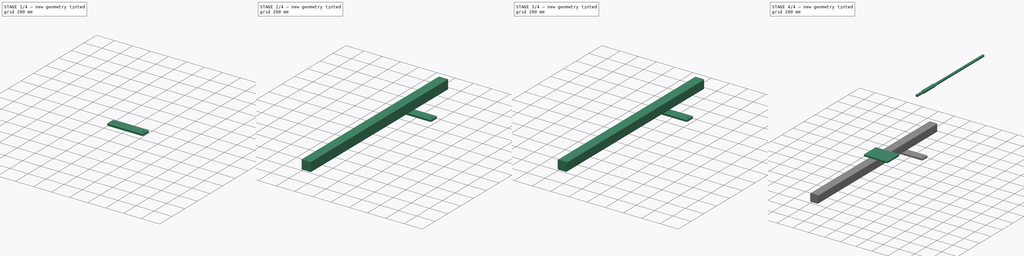
[diagram: build sequence overview — one tinted view per stage of 4, left to right]
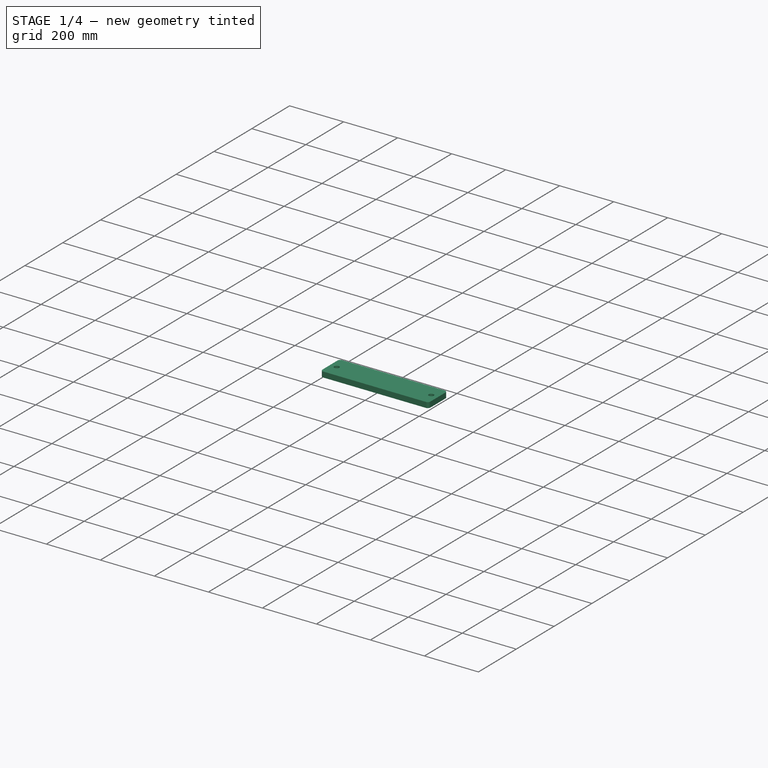
[diagram: stage 1 of 4 — iso view after this stage's code; geometry added in this stage tinted green]
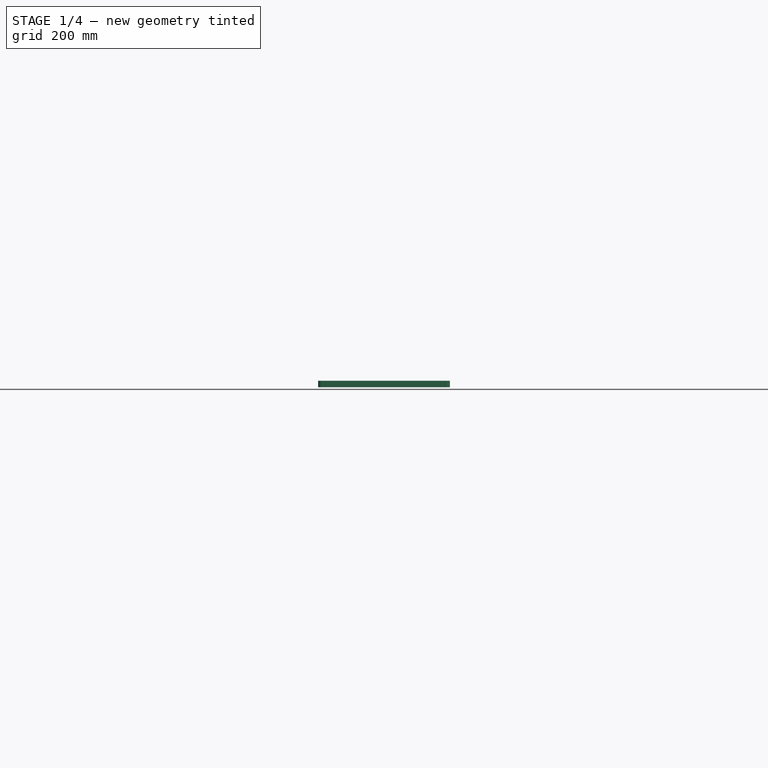
[diagram: stage 1 of 4 — front view after this stage's code; geometry added in this stage tinted green]
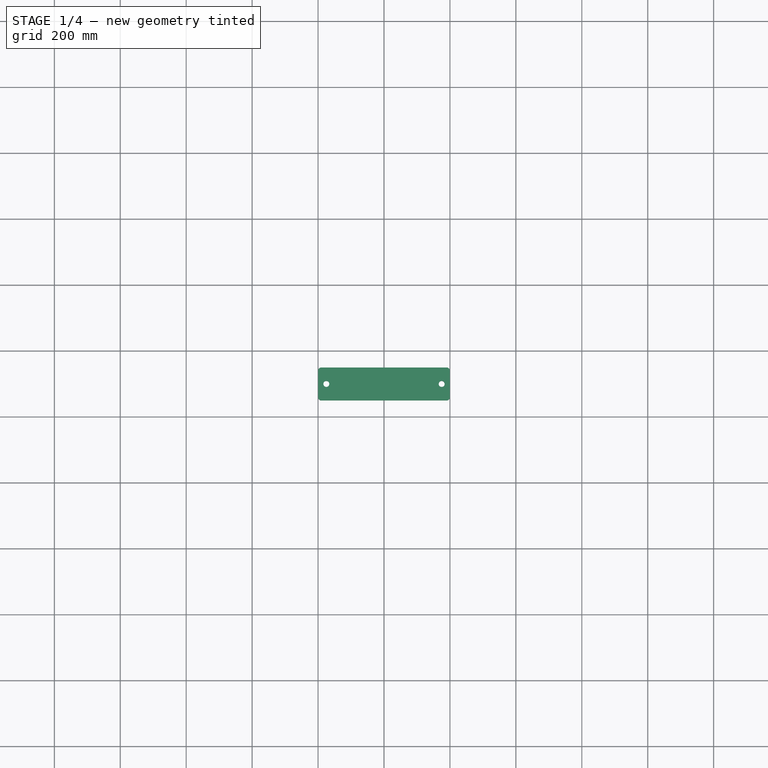
[diagram: stage 1 of 4 — top view after this stage's code; geometry added in this stage tinted green]
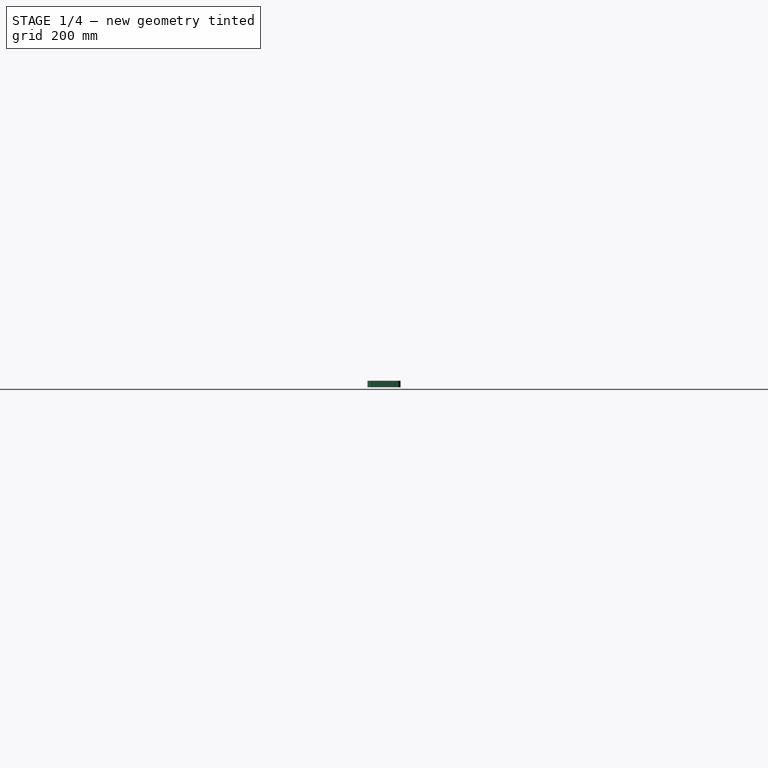
[diagram: stage 1 of 4 — right view after this stage's code; geometry added in this stage tinted green]
FCSTD DOCUMENT  (FreeCAD 0.18R16146 (Git))
Label: kuka
License: All rights reserved
LicenseURL: http://en.wikipedia.org/wiki/All_rights_reserved
objects: Part::Feature×23, PartDesign::Body×8, PartDesign::FeatureBase×5, PartDesign::Fillet×4, Sketcher::SketchObject×3, PartDesign::Pad×3, Part::Cylinder×2, App::Part×2
note: 51 computed .brp shape members not serialized (recipe doc carries the construction recipe); baked Part::Feature solids carry a one-line shape summary decoded from their .brp

FEATURE [PartDesign::Body] Body002  label="Tube_100x100_copy"
  Group = -> [Clone]
  Origin = -> Origin003
  Placement = pos=(200,0,0) rot=(0,0,1;0rad)
  Tip = -> Clone
FEATURE [Sketcher::SketchObject] Sketch002
  MapMode = 5
  Support = -> [XY_Plane004]
  sketch-geometry (6):
    g0: LineSegment StartX=-200 StartY=50 StartZ=0 EndX=200 EndY=50 EndZ=0
    g1: LineSegment StartX=200 StartY=50 StartZ=0 EndX=200 EndY=-50 EndZ=0
    g2: LineSegment StartX=200 StartY=-50 StartZ=0 EndX=-200 EndY=-50 EndZ=0
    g3: LineSegment StartX=-200 StartY=-50 StartZ=0 EndX=-200 EndY=50 EndZ=0
    g4: Circle CenterX=-175 CenterY=-2e-16 CenterZ=0 NormalX=0 NormalY=0 NormalZ=1 AngleXU=0 Radius=9
    g5: Circle CenterX=175 CenterY=-2e-16 CenterZ=0 NormalX=0 NormalY=0 NormalZ=1 AngleXU=0 Radius=9
  constraints (16):
    c: Coincident(g0,g1)
    c: Coincident(g1,g2)
    c: Coincident(g2,g3)
    c: Coincident(g3,g0)
    c: Horizontal(g0)
    c: Horizontal(g2)
    c: Vertical(g1)
    c: Vertical(g3)
    c: DistanceX(g0,g0) = 400
    c: DistanceY(g1,g1) = 100
    c: DistanceY(g-1,g0) = 50
    c: DistanceX(g0,g-1) = 200
    c: Radius(g4) = 9
    c: DistanceY(g4,g0) = 50
    c: DistanceX(g0,g4) = 25
    c: Radius(g5) = 9
FEATURE [PartDesign::Pad] Pad002
  Length = 20
  Length2 = 100
  Profile = -> Sketch002
  Type = 0
FEATURE [PartDesign::Fillet] Fillet002
  Base = -> Pad002 [Edge5,Edge2,Edge8,Edge1]
  BaseFeature = -> Pad002
  Radius = 10
FEATURE [PartDesign::Body] Body003  label="Floor_attachment"
  Group = -> [Sketch002,Pad002,Fillet002]
  Origin = -> Origin004
  Placement = pos=(0,0,-170) rot=(0,0,1;0rad)
  Tip = -> Fillet002
FEATURE [PartDesign::FeatureBase] Clone001
  BaseFeature = -> Body003
  Placement = pos=(0,0,-170) rot=(0,0,1;0rad)
FEATURE [PartDesign::Body] Body004  label="Floor_attachment_clone"
  Group = -> [Clone001]
  Origin = -> Origin005
  Placement = pos=(0,-500,0) rot=(0,0,1;0rad)
  Tip = -> Clone001
FEATURE [PartDesign::FeatureBase] Clone002
  BaseFeature = -> Body004
  Placement = pos=(0,-500,0) rot=(0,0,1;0rad)
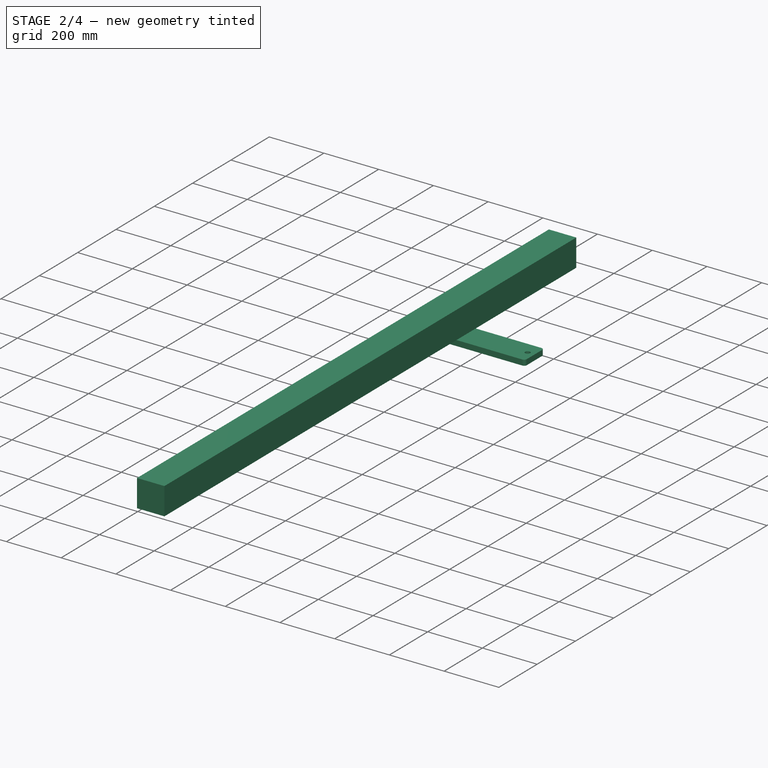
[diagram: stage 2 of 4 — iso view after this stage's code; geometry added in this stage tinted green]
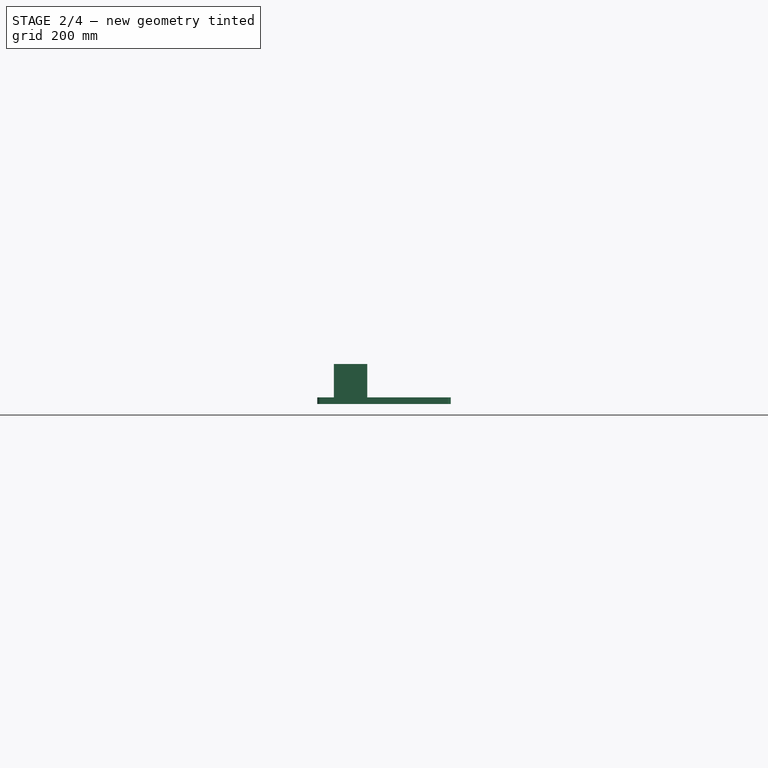
[diagram: stage 2 of 4 — front view after this stage's code; geometry added in this stage tinted green]
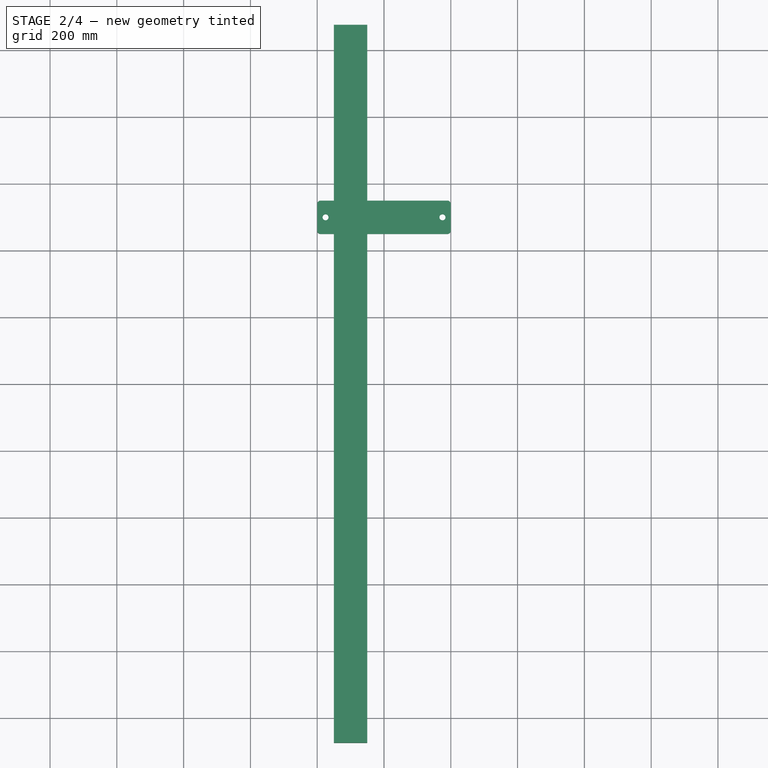
[diagram: stage 2 of 4 — top view after this stage's code; geometry added in this stage tinted green]
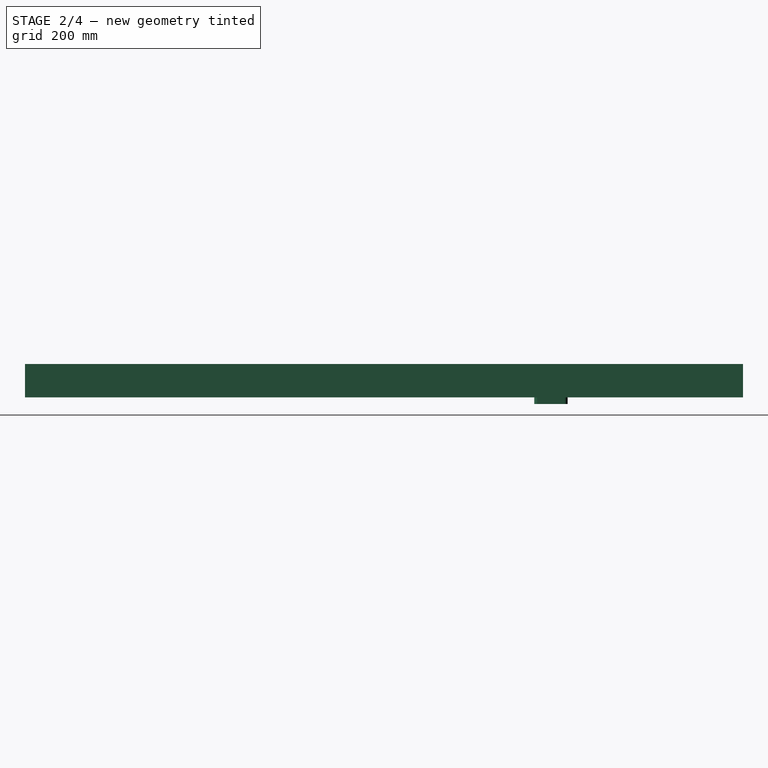
[diagram: stage 2 of 4 — right view after this stage's code; geometry added in this stage tinted green]
FEATURE [App::Part] KR6_KR10_R900_sixx  label="KR6_KR10_R900 sixx001"
  Group = -> [Part__Feature,Part__Feature001,Part__Feature002,Part__Feature003,Part__Feature004,Part__Feature005,Part__Feature006,Part__Feature007,Part__Feature008,Part__Feature009,Part__Feature010,Part__Feature011,Part__Feature012,Part__Feature013,Part__Feature014,Part__Feature015,Part__Feature016,Part__Feature017,Part__Feature018,Part__Feature019,Part__Feature020,Part__Feature021,Part__Feature022,Cylinder,+1 more]
  Origin = -> Origin
FEATURE [Sketcher::SketchObject] Sketch001
  MapMode = 5
  Placement = pos=(0,0,0) rot=(1,0,0;1.5708rad)
  Support = -> [XZ_Plane002]
  sketch-geometry (4):
    g0: LineSegment StartX=-150 StartY=-50 StartZ=0 EndX=-50 EndY=-50 EndZ=0
    g1: LineSegment StartX=-50 StartY=-50 StartZ=0 EndX=-50 EndY=-150 EndZ=0
    g2: LineSegment StartX=-50 StartY=-150 StartZ=0 EndX=-150 EndY=-150 EndZ=0
    g3: LineSegment StartX=-150 StartY=-150 StartZ=0 EndX=-150 EndY=-50 EndZ=0
  constraints (12):
    c: Coincident(g0,g1)
    c: Coincident(g1,g2)
    c: Coincident(g2,g3)
    c: Coincident(g3,g0)
    c: Horizontal(g0)
    c: Horizontal(g2)
    c: Vertical(g1)
    c: Vertical(g3)
    c: DistanceX(g0,g0) = 100
    c: DistanceY(g1,g1) = 100
    c: DistanceY(g0,g-1) = 50
    c: DistanceX(g0,g-1) = 50
FEATURE [PartDesign::Pad] Pad001
  Length = 2150
  Length2 = 100
  Midplane = true
  Placement = pos=(0,0,0) rot=(1,0,0;1.5708rad)
  Profile = -> Sketch001
  Type = 0
FEATURE [PartDesign::Body] Body005  label="Floor_attachement_clone001"
  Group = -> [Clone002]
  Origin = -> Origin006
  Placement = pos=(0,-500,0) rot=(0,0,1;0rad)
  Tip = -> Clone002
FEATURE [PartDesign::FeatureBase] Clone003
  BaseFeature = -> Body005
  Placement = pos=(0,-500,0) rot=(0,0,1;0rad)
FEATURE [PartDesign::Body] Body006  label="Floor_attachment_clone002"
  Group = -> [Clone003]
  Origin = -> Origin007
  Placement = pos=(0,1500,0) rot=(0,0,1;0rad)
  Tip = -> Clone003
FEATURE [PartDesign::FeatureBase] Clone004
  BaseFeature = -> Body006
  Placement = pos=(0,1500,0) rot=(0,0,1;0rad)
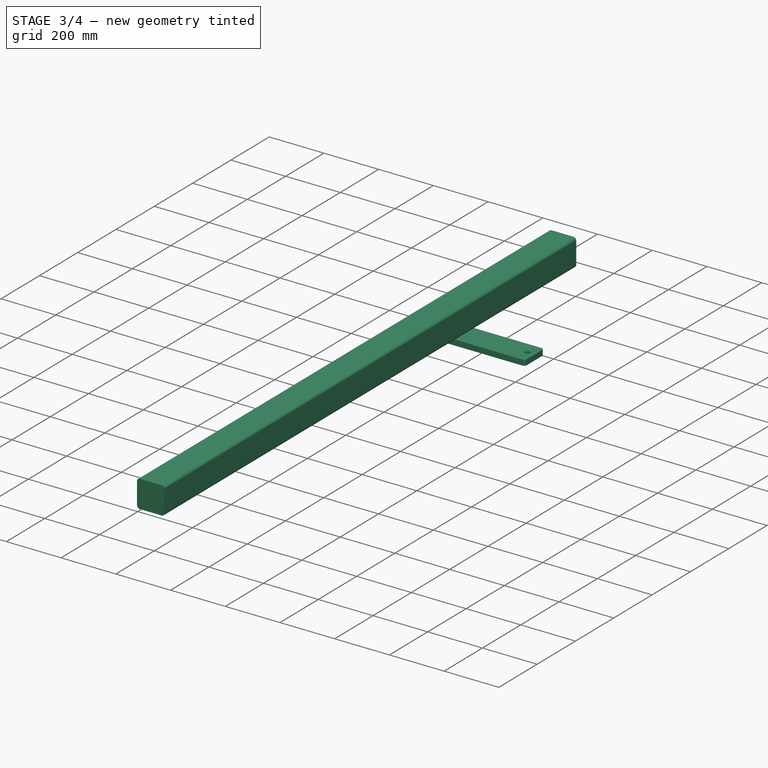
[diagram: stage 3 of 4 — iso view after this stage's code; geometry added in this stage tinted green]
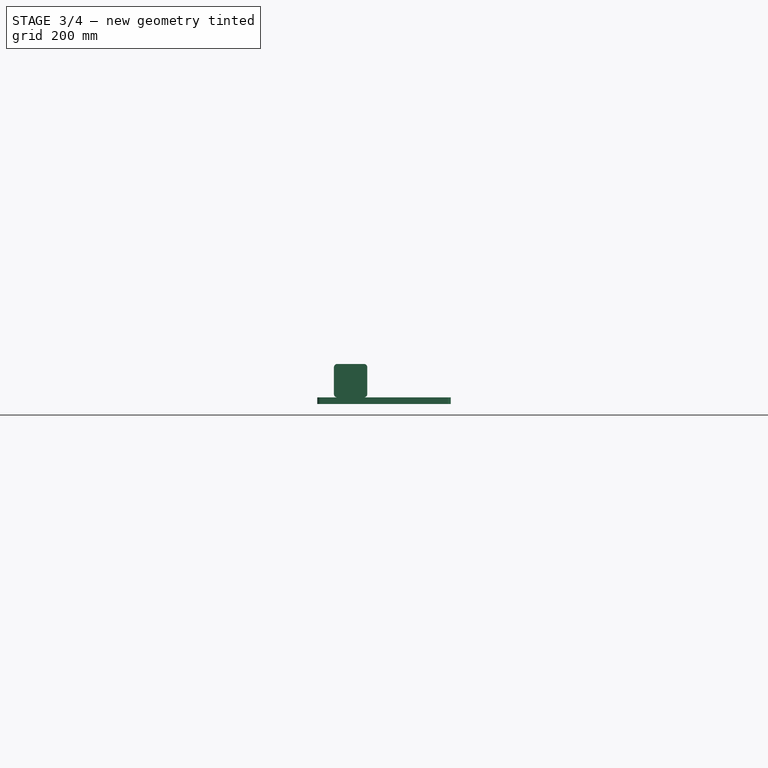
[diagram: stage 3 of 4 — front view after this stage's code; geometry added in this stage tinted green]
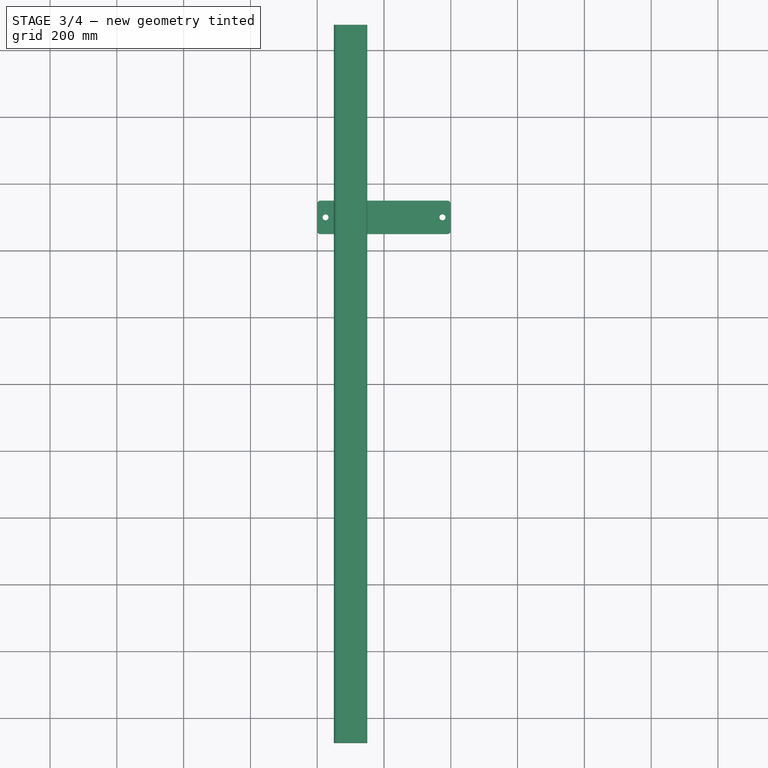
[diagram: stage 3 of 4 — top view after this stage's code; geometry added in this stage tinted green]
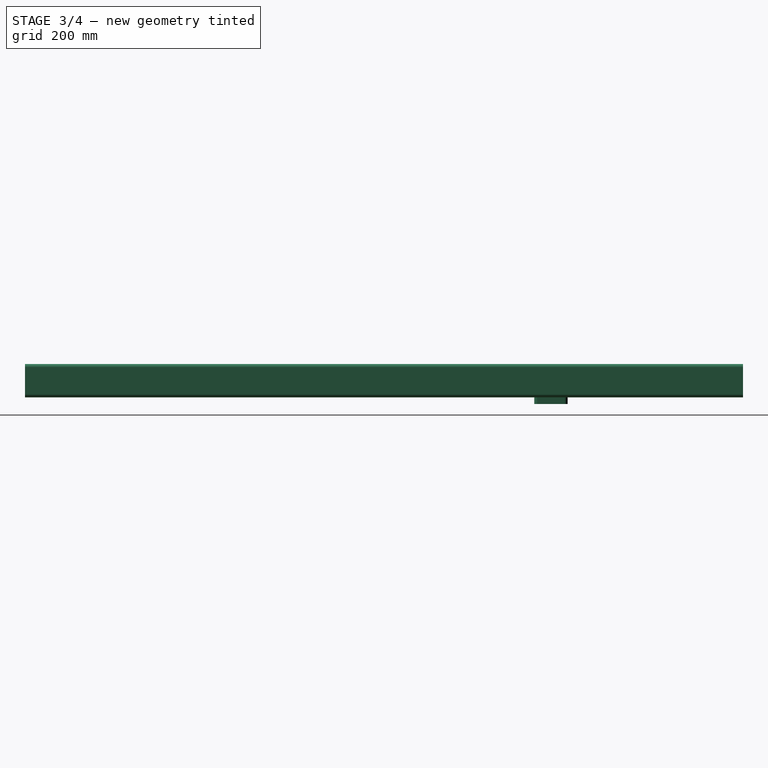
[diagram: stage 3 of 4 — right view after this stage's code; geometry added in this stage tinted green]
FEATURE [PartDesign::Fillet] Fillet
  Base = -> Pad001 [Edge2]
  BaseFeature = -> Pad001
  Placement = pos=(0,0,0) rot=(1,0,0;1.5708rad)
  Radius = 10
FEATURE [PartDesign::Fillet] Fillet001
  Base = -> Fillet [Edge11,Edge15,Edge3]
  BaseFeature = -> Fillet
  Placement = pos=(0,0,0) rot=(1,0,0;1.5708rad)
  Radius = 10
FEATURE [PartDesign::Body] Body001  label="Tube_100x100"
  Group = -> [Sketch001,Pad001,Fillet,Fillet001]
  Origin = -> Origin002
  Tip = -> Fillet001
FEATURE [PartDesign::FeatureBase] Clone
  BaseFeature = -> Body001
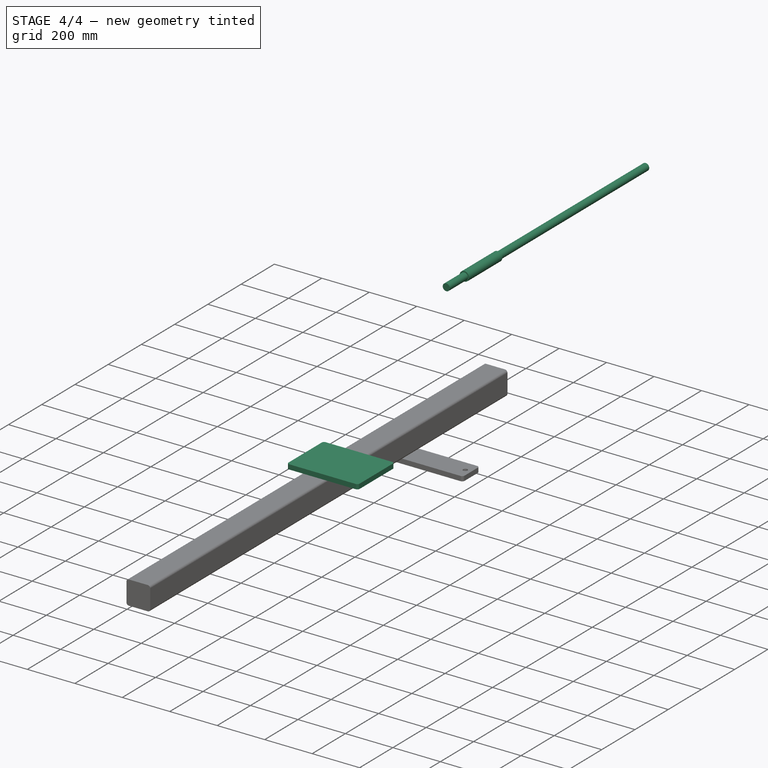
[diagram: stage 4 of 4 — iso view after this stage's code; geometry added in this stage tinted green]
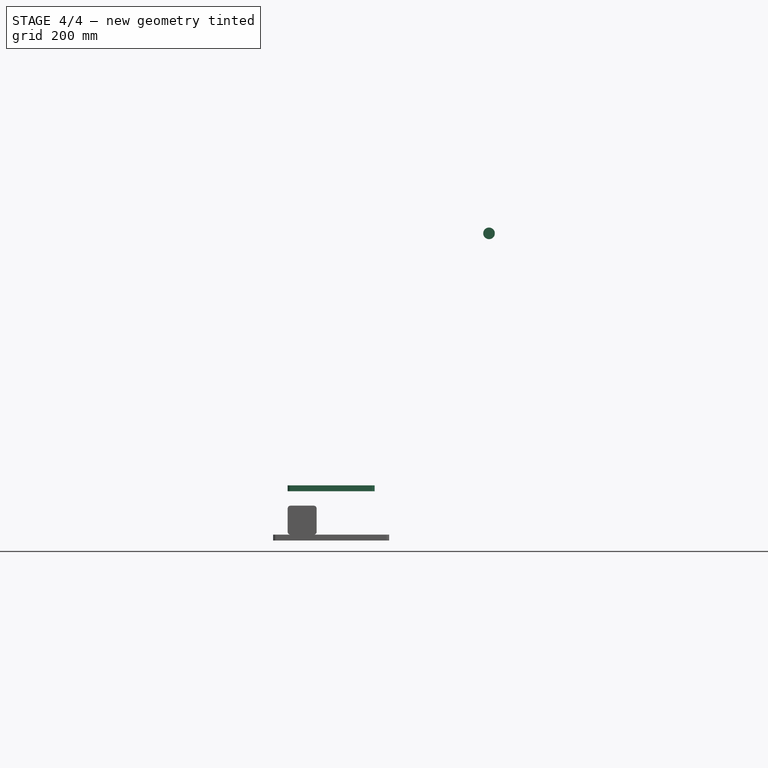
[diagram: stage 4 of 4 — front view after this stage's code; geometry added in this stage tinted green]
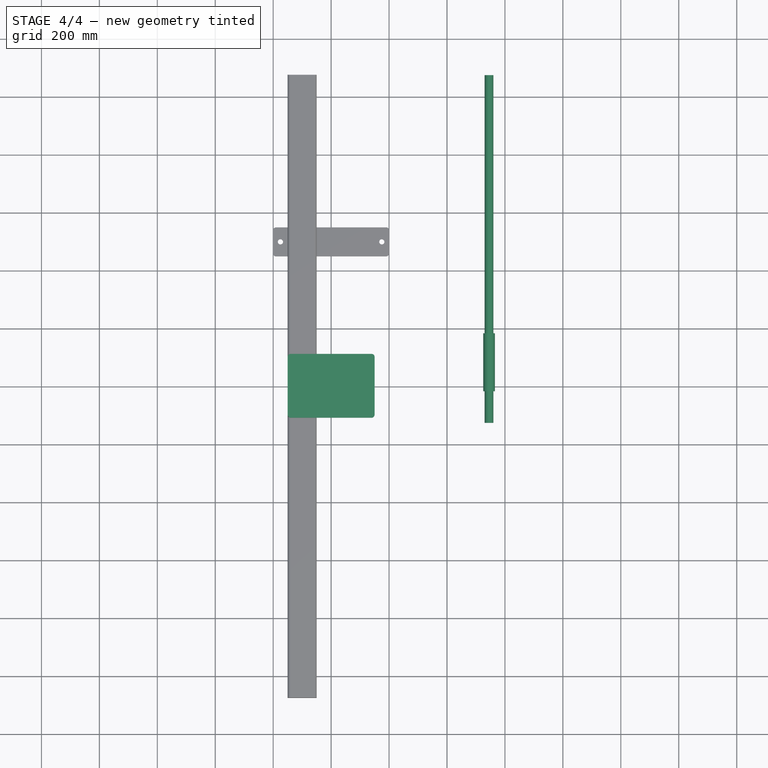
[diagram: stage 4 of 4 — top view after this stage's code; geometry added in this stage tinted green]
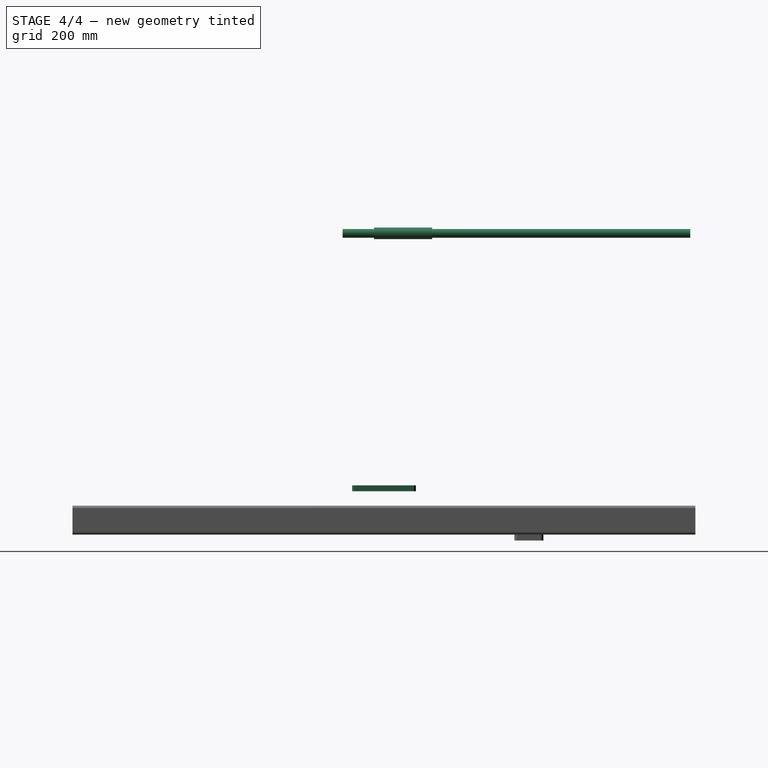
[diagram: stage 4 of 4 — right view after this stage's code; geometry added in this stage tinted green]
FEATURE [Part::Feature] Part__Feature  label="KR6_KR10_R900 sixx"
  shape: bbox 425.8 x 121.7 x 143.7 mm, 281 faces (baked)
FEATURE [Part::Feature] Part__Feature001  label="KR6_KR10_R900 sixx_1"
  shape: bbox 341.8 x 247.8 x 261.3 mm, 321 faces (baked)
FEATURE [Part::Feature] Part__Feature002  label="KR6_KR10_R900 sixx_2"
  shape: bbox 284.6 x 281.2 x 866.6 mm, 171 faces (baked)
FEATURE [Part::Feature] Part__Feature003  label="KR6_KR10_R900 sixx_3"
  shape: bbox 116.7 x 78.5 x 80.41 mm, 72 faces (baked)
FEATURE [Part::Feature] Part__Feature004  label="KR6_KR10_R900 sixx_4"
  shape: bbox 249.7 x 371.9 x 308 mm, 149 faces (baked)
FEATURE [Part::Feature] Part__Feature005  label="KR6_KR10_R900 sixx_5"
  shape: bbox 6.14 x 18.15 x 24.46 mm, 15 faces (baked)
FEATURE [Part::Feature] Part__Feature006  label="KR6_KR10_R900 sixx_6"
  shape: bbox 6.074 x 18.49 x 23.7 mm, 14 faces (baked)
FEATURE [Part::Feature] Part__Feature007  label="KR6_KR10_R900 sixx_7"
  shape: bbox 6.143 x 18.16 x 24.5 mm, 16 faces (baked)
FEATURE [Part::Feature] Part__Feature008  label="KR6_KR10_R900 sixx_8"
  shape: bbox 6.242 x 18.16 x 27.53 mm, 15 faces (baked)
FEATURE [Part::Feature] Part__Feature009  label="KR6_KR10_R900 sixx_9"
  shape: bbox 15.59 x 18.15 x 23.35 mm, 15 faces (baked)
FEATURE [Part::Feature] Part__Feature010  label="KR6_KR10_R900 sixx_10"
  shape: bbox 15.35 x 18.49 x 22.63 mm, 14 faces (baked)
FEATURE [Part::Feature] Part__Feature011  label="KR6_KR10_R900 sixx_11"
  shape: bbox 14.53 x 18.19 x 23.62 mm, 15 faces (baked)
FEATURE [Part::Feature] Part__Feature012  label="KR6_KR10_R900 sixx_12"
  shape: bbox 11.97 x 18.18 x 26.35 mm, 14 faces (baked)
FEATURE [Part::Feature] Part__Feature013  label="KR6_KR10_R900 sixx_13"
  shape: bbox 27.56 x 5 x 18.15 mm, 14 faces (baked)
FEATURE [Part::Feature] Part__Feature014  label="KR6_KR10_R900 sixx_14"
  shape: bbox 24.55 x 5 x 18.15 mm, 15 faces (baked)
FEATURE [Part::Feature] Part__Feature015  label="KR6_KR10_R900 sixx_15"
  shape: bbox 23.79 x 6 x 18.49 mm, 14 faces (baked)
FEATURE [Part::Feature] Part__Feature016  label="KR6_KR10_R900 sixx_16"
  shape: bbox 24.55 x 5 x 18.15 mm, 15 faces (baked)
FEATURE [Part::Feature] Part__Feature017  label="KR6_KR10_R900 sixx_17"
  shape: bbox 27.56 x 2.5 x 18.15 mm, 14 faces (baked)
FEATURE [Part::Feature] Part__Feature018  label="KR6_KR10_R900 sixx_18"
  shape: bbox 24.55 x 2.5 x 18.15 mm, 15 faces (baked)
FEATURE [Part::Feature] Part__Feature019  label="KR6_KR10_R900 sixx_19"
  shape: bbox 23.79 x 3 x 18.49 mm, 14 faces (baked)
FEATURE [Part::Feature] Part__Feature020  label="KR6_KR10_R900 sixx_20"
  shape: bbox 24.55 x 2.5 x 18.15 mm, 15 faces (baked)
FEATURE [Part::Feature] Part__Feature021  label="KR6_KR10_R900 sixx_21"
  shape: bbox 198.9 x 144.7 x 177.4 mm, 113 faces (baked)
FEATURE [Part::Feature] Part__Feature022  label="KR6_KR10_R900 sixx_22"
  shape: bbox 13.51 x 40.01 x 40.01 mm, 26 faces (baked)
FEATURE [Part::Cylinder] Cylinder
  Angle = 360
  AttacherType = Attacher::AttachEngine3D
  Height = 1200
  Placement = pos=(545,-143,890) rot=(-1,0,0;1.5708rad)
  Radius = 15
FEATURE [Part::Cylinder] Cylinder001
  Angle = 360
  AttacherType = Attacher::AttachEngine3D
  Height = 200
  Placement = pos=(545,-34,890) rot=(-1,0,0;1.5708rad)
  Radius = 20
FEATURE [PartDesign::Body] Body007  label="Floor_attachment_clone003"
  Group = -> [Clone004]
  Origin = -> Origin008
  Placement = pos=(0,500,0) rot=(0,0,1;0rad)
  Tip = -> Clone004
FEATURE [Sketcher::SketchObject] Sketch003
  MapMode = 5
  Support = -> [XY_Plane009]
  sketch-geometry (4):
    g0: LineSegment StartX=-150 StartY=110 StartZ=0 EndX=150 EndY=110 EndZ=0
    g1: LineSegment StartX=150 StartY=110 StartZ=0 EndX=150 EndY=-110 EndZ=0
    g2: LineSegment StartX=150 StartY=-110 StartZ=0 EndX=-150 EndY=-110 EndZ=0
    g3: LineSegment StartX=-150 StartY=-110 StartZ=0 EndX=-150 EndY=110 EndZ=0
  constraints (12):
    c: Coincident(g0,g1)
    c: Coincident(g1,g2)
    c: Coincident(g2,g3)
    c: Coincident(g3,g0)
    c: Horizontal(g0)
    c: Horizontal(g2)
    c: Vertical(g1)
    c: Vertical(g3)
    c: DistanceX(g0,g0) = 300
    c: DistanceX(g-1,g0) = 150
    c: DistanceY(g-1,g0) = 110
    c: DistanceY(g3,g3) = 220
FEATURE [PartDesign::Pad] Pad003
  Length = 20
  Length2 = 100
  Profile = -> Sketch003
  Type = 0
FEATURE [PartDesign::Fillet] Fillet003
  Base = -> Pad003 [Edge5,Edge2,Edge1,Edge8]
  BaseFeature = -> Pad003
  Radius = 10
FEATURE [PartDesign::Body] Body008  label="Robot_mountplate_20mm"
  Group = -> [Sketch003,Pad003,Fillet003]
  Origin = -> Origin009
  Placement = pos=(0,0,-20) rot=(0,0,1;0rad)
  Tip = -> Fillet003
FEATURE [App::Part] Part
  Group = -> [Body001,Body002,Body003,Body004,Body005,Body006,Body007]
  Origin = -> Origin010
  Placement = pos=(0,0,20) rot=(0,0,1;0rad)
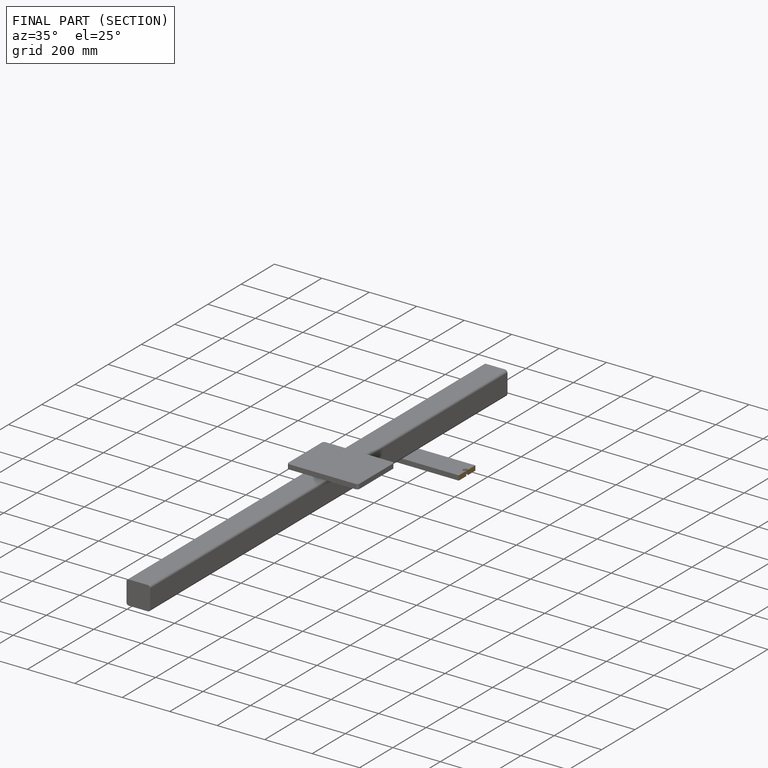
[diagram: finished part — half-section view (interior)]
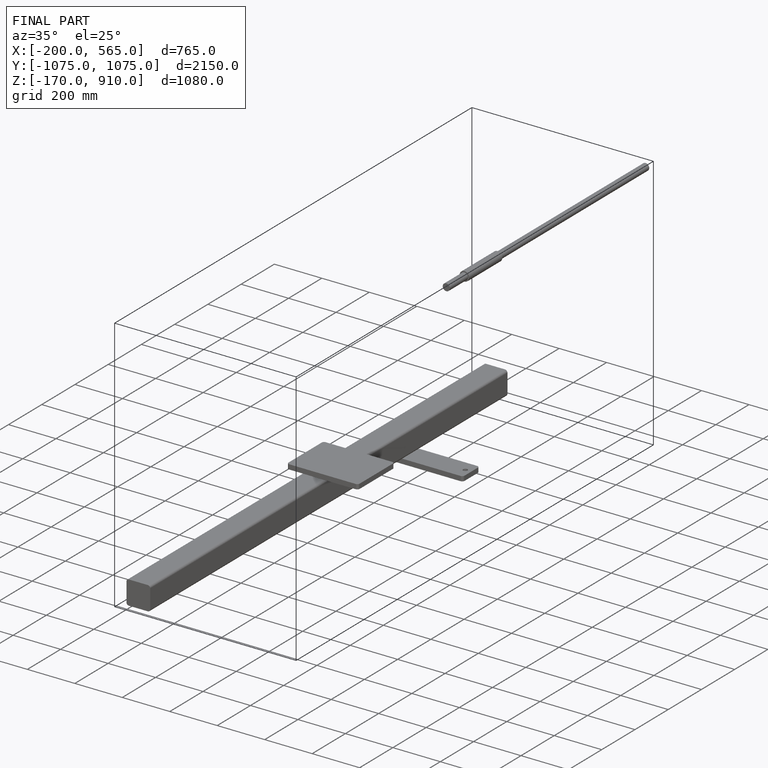
[diagram: finished part — iso view with bounding-box wireframe]
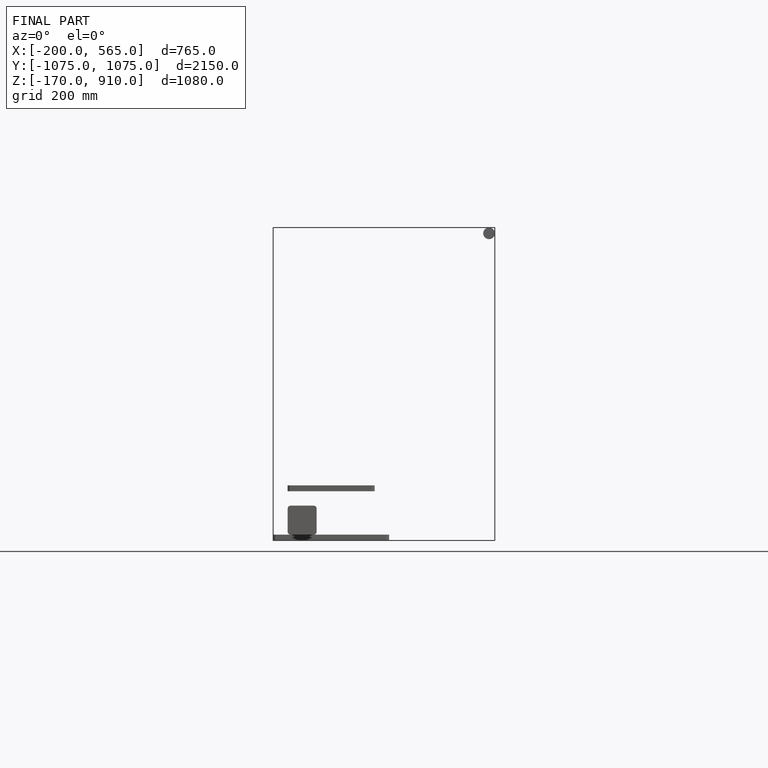
[diagram: finished part — front view with bounding-box wireframe]
